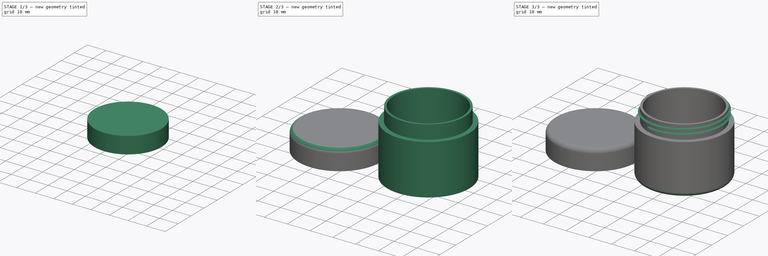
[diagram: build sequence overview — one tinted view per stage of 3, left to right]
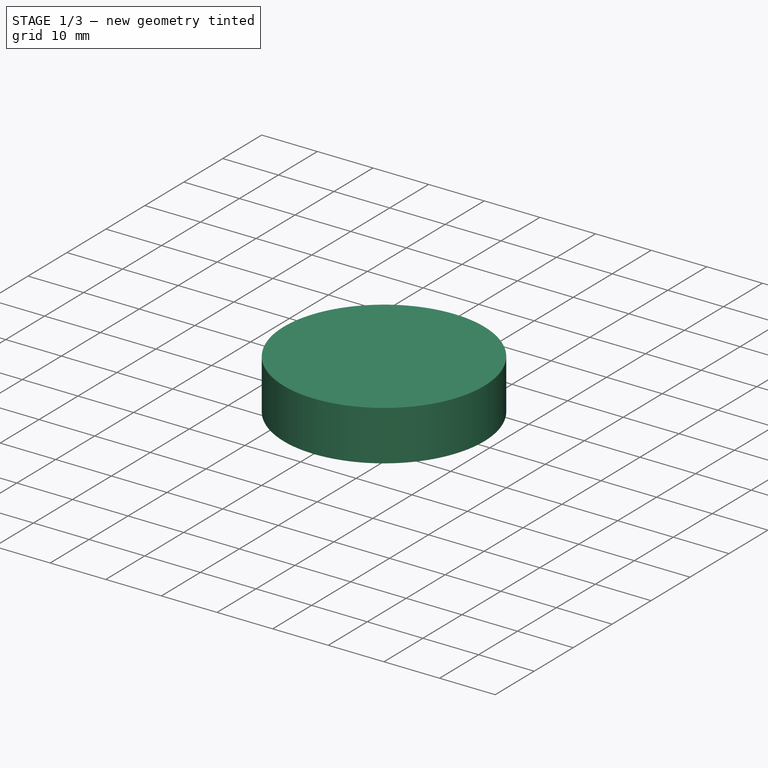
[diagram: stage 1 of 3 — iso view after this stage's code; geometry added in this stage tinted green]
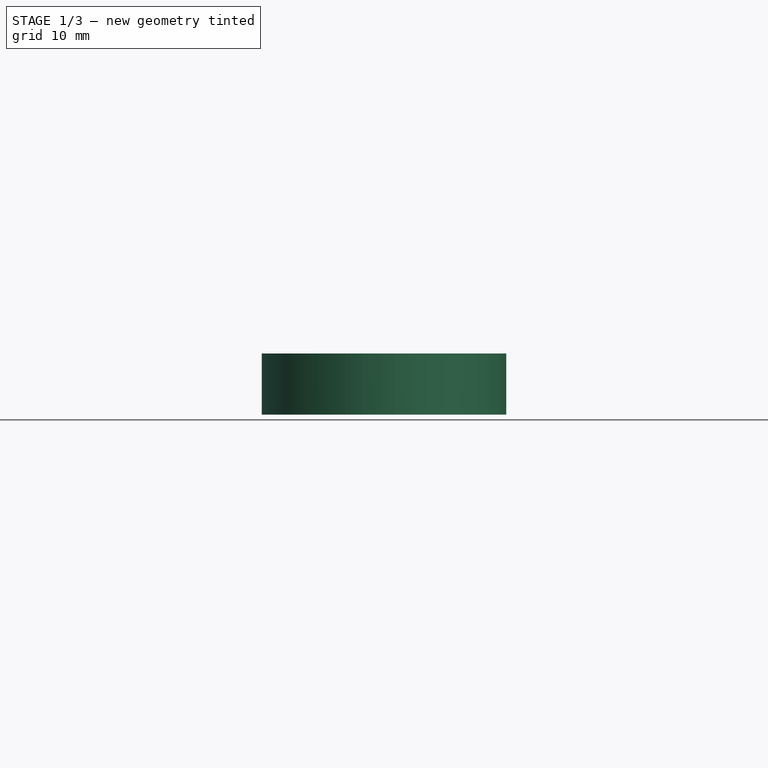
[diagram: stage 1 of 3 — front view after this stage's code; geometry added in this stage tinted green]
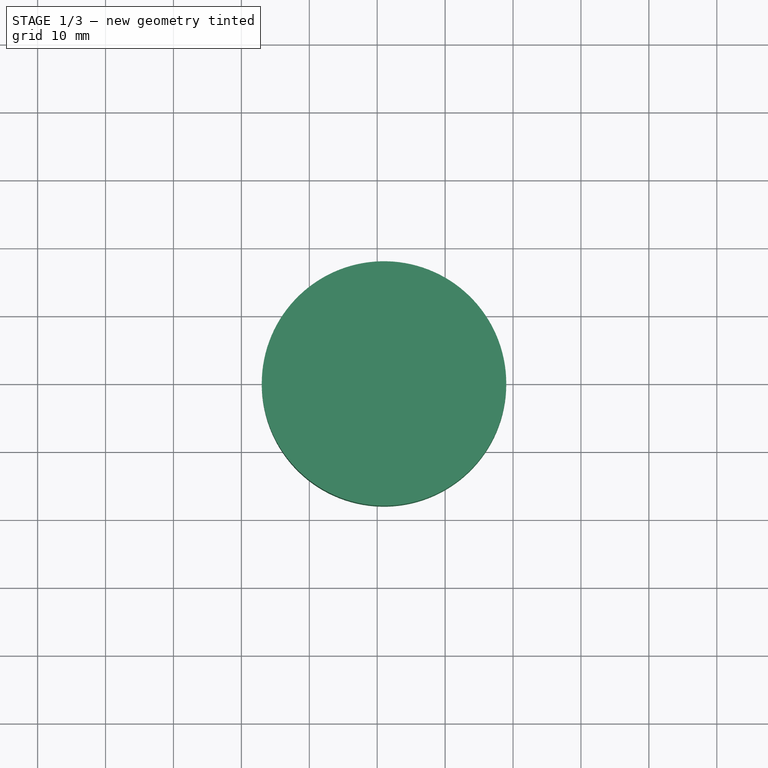
[diagram: stage 1 of 3 — top view after this stage's code; geometry added in this stage tinted green]
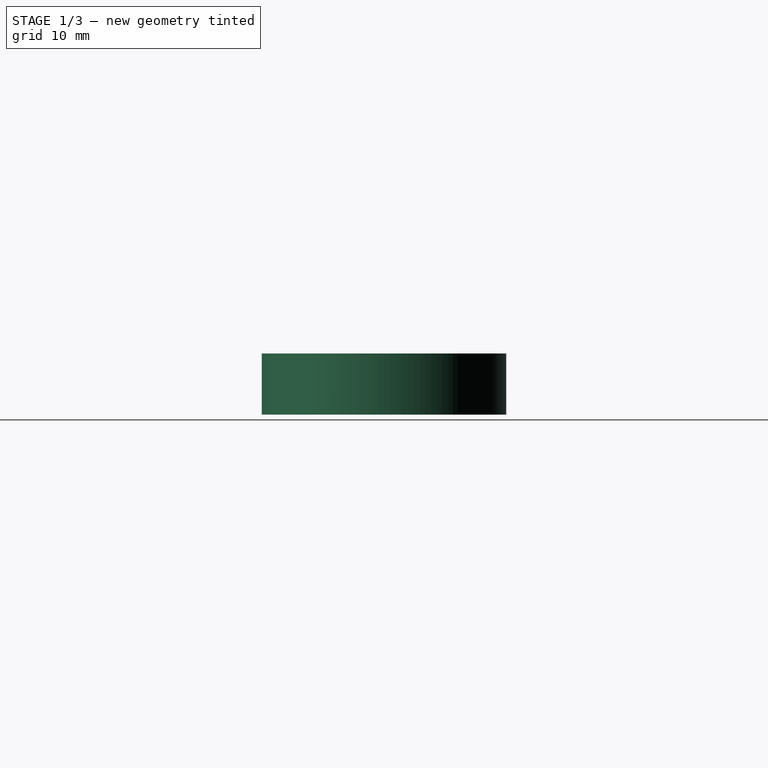
[diagram: stage 1 of 3 — right view after this stage's code; geometry added in this stage tinted green]
FCSTD DOCUMENT  (FreeCAD 1.0R39319 (Git))
Label: SmallBox
License: All rights reserved
LicenseURL: https://en.wikipedia.org/wiki/All_rights_reserved
objects: Sketcher::SketchObject×4, PartDesign::Revolution×2, PartDesign::AdditiveHelix×2, PartDesign::Fillet×2, PartDesign::Body×2, App::VarSet×1
note: 28 computed .brp shape members not serialized (recipe doc carries the construction recipe); baked Part::Feature solids carry a one-line shape summary decoded from their .brp

FEATURE [Sketcher::SketchObject] Sketch002  label="CapBody"
  ArcFitTolerance = 1e-06
  AttachmentSupport = -> [XZ_Plane001]
  FullyConstrained = true
  MakeInternals = false
  MapMode = 5
  Placement = pos=(0,0,0) rot=(1,0,0;1.5708rad)
  expr: Constraints[11] = VarSet.CapInternalHeight
  expr: Constraints[12] = VarSet.Thickness
  expr: Constraints[13] = VarSet.ContactThickness
  expr: Constraints[15] = VarSet.ExternalRadius
  expr: Constraints[16] = VarSet.ExternalRadius * 2 + VarSet.Thickness
  sketch-geometry (6):
    g0: LineSegment StartX=-39 StartY=6 StartZ=0 EndX=-56.05 EndY=6 EndZ=0
    g1: LineSegment StartX=-56.05 StartY=6 StartZ=0 EndX=-56.05 EndY=0 EndZ=0
    g2: LineSegment StartX=-56.05 StartY=0 StartZ=0 EndX=-57 EndY=0 EndZ=0
    g3: LineSegment StartX=-57 StartY=0 StartZ=0 EndX=-57 EndY=9 EndZ=0
    g4: LineSegment StartX=-57 StartY=9 StartZ=0 EndX=-39 EndY=9 EndZ=0
    g5: LineSegment StartX=-39 StartY=9 StartZ=0 EndX=-39 EndY=6 EndZ=0
  constraints (18):
    c: Horizontal(g0)
    c: Vertical(g1)
    c: Coincident(g1,g2)
    c: Horizontal(g2)
    c: Coincident(g2,g3)
    c: Vertical(g3)
    c: Coincident(g3,g4)
    c: Horizontal(g4)
    c: Coincident(g4,g5)
    c: Coincident(g5,g0)
    c: Vertical(g5)
    c: DistanceY(g1,g0) = 6
    c: DistanceY(g5,g5) = 3
    c: DistanceX(g2,g2) = 0.95
    c: Coincident(g1,g0)
    c: DistanceX(g4,g4) = 18
    c: Distance(g-2,g5) = 39
    c: PointOnObject(g2,g-1)
FEATURE [Sketcher::SketchObject] Sketch003  label="CapThread"
  ArcFitTolerance = 1e-06
  AttachmentSupport = -> [XZ_Plane001]
  ExternalGeometry = -> [Sketch002]
  FullyConstrained = true
  MakeInternals = false
  MapMode = 5
  Placement = pos=(0,0,0) rot=(1,0,0;1.5708rad)
  expr: Constraints[6] = VarSet.ThreadWidth
  expr: Constraints[7] = VarSet.ThreadDepth
  sketch-geometry (3):
    g0: LineSegment StartX=-56.05 StartY=6 StartZ=0 EndX=-55.25 EndY=5.6 EndZ=0
    g1: LineSegment StartX=-55.25 StartY=5.6 StartZ=0 EndX=-56.05 EndY=5.2 EndZ=0
    g2: LineSegment StartX=-56.05 StartY=5.2 StartZ=0 EndX=-56.05 EndY=6 EndZ=0
  constraints (8):
    c: Coincident(g0,g-3)
    c: Coincident(g0,g1)
    c: Coincident(g1,g2)
    c: Coincident(g2,g0)
    c: Vertical(g2)
    c: Equal(g0,g1)
    c: DistanceY(g1,g0) = 0.8
    c: DistanceX(g0,g0) = 0.8
FEATURE [PartDesign::Revolution] Revolution002
  Angle = 360
  Angle2 = 60
  Axis = (0,-2e-16,-1)
  Base = (-39,2e-15,9)
  Placement = pos=(0,0,0) rot=(1,0,0;1.5708rad)
  Profile = -> Sketch002
  ReferenceAxis = -> Sketch002 [Edge6]
  Refine = true
  Suppressed = false
  Type = 0
FEATURE [PartDesign::AdditiveHelix] AdditiveHelix
  Angle = 0
  Axis = (0,-2e-16,-1)
  Base = (-39,2e-15,9)
  BaseFeature = -> Revolution002
  Growth = 0
  HasBeenEdited = true
  Height = 3.6
  LeftHanded = false
  Mode = 0
  Outside = false
  Pitch = 2
  Placement = pos=(0,0,0) rot=(1,0,0;1.5708rad)
  Profile = -> Sketch003
  ReferenceAxis = -> Sketch002 [Edge6]
  Refine = true
  Suppressed = false
  Tolerance = 0.1
  Turns = 1.8
  expr: Height = VarSet.ThreadLength
  expr: Pitch = VarSet.ThreadPitch
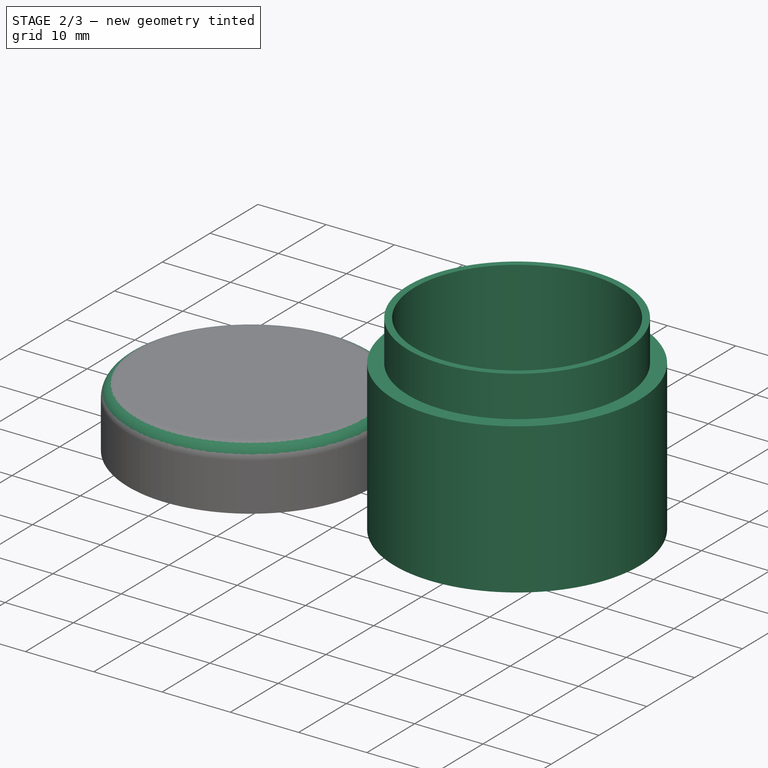
[diagram: stage 2 of 3 — iso view after this stage's code; geometry added in this stage tinted green]
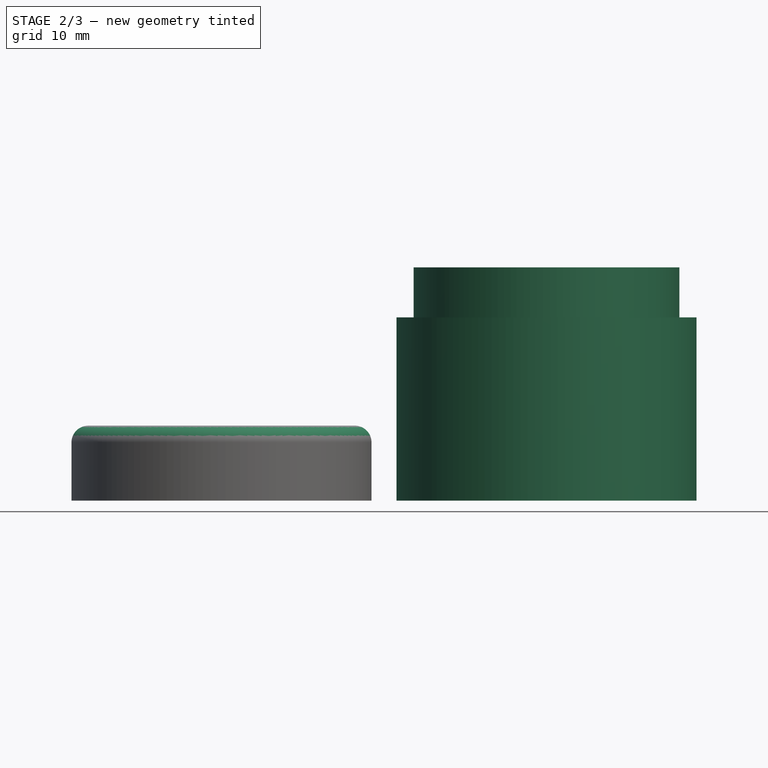
[diagram: stage 2 of 3 — front view after this stage's code; geometry added in this stage tinted green]
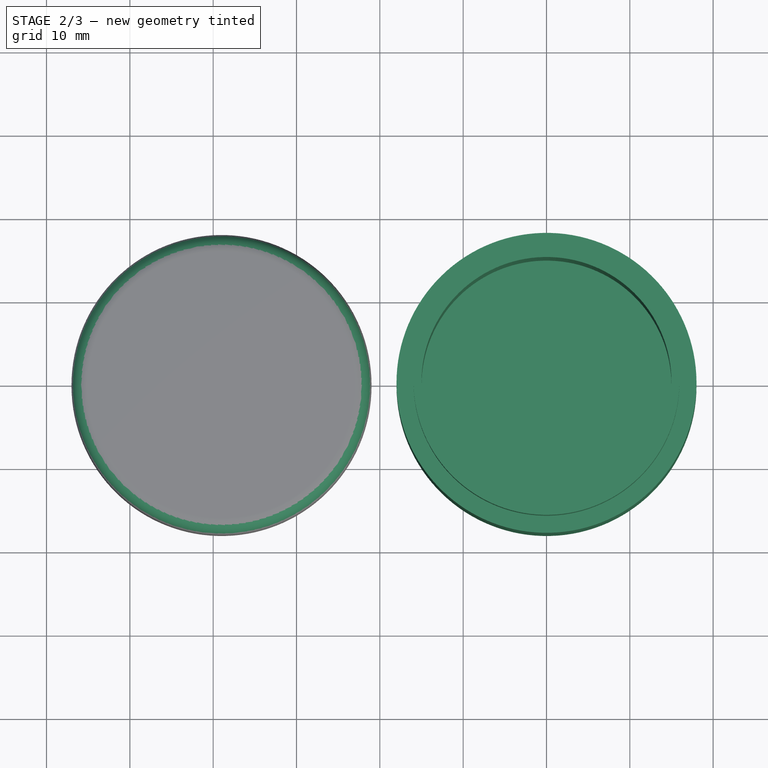
[diagram: stage 2 of 3 — top view after this stage's code; geometry added in this stage tinted green]
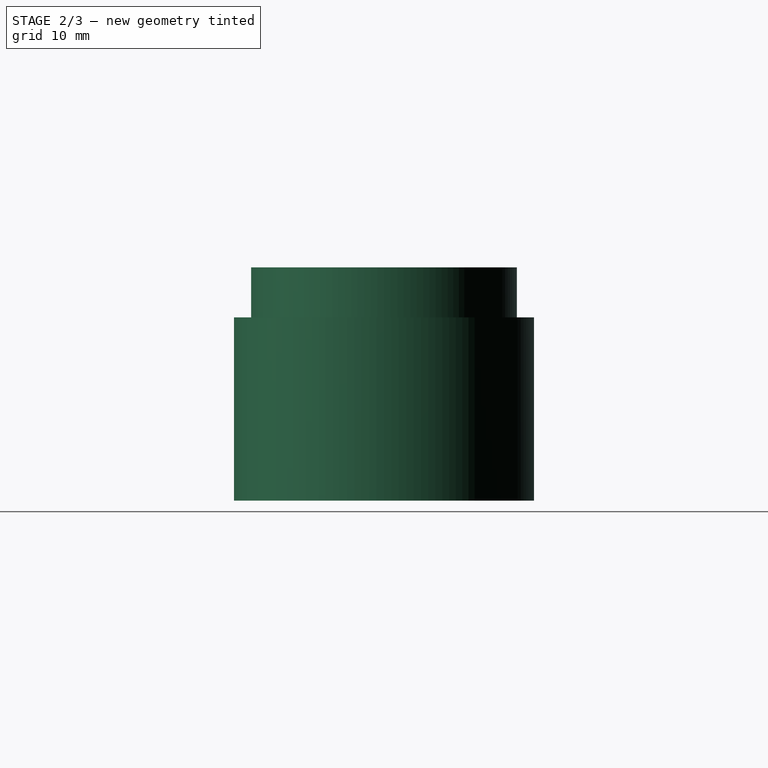
[diagram: stage 2 of 3 — right view after this stage's code; geometry added in this stage tinted green]
FEATURE [Sketcher::SketchObject] Sketch
  ArcFitTolerance = 1e-06
  AttachmentSupport = -> [XZ_Plane]
  FullyConstrained = true
  MakeInternals = false
  MapMode = 5
  Placement = pos=(0,0,0) rot=(1,0,0;1.5708rad)
  expr: Constraints[15] = VarSet.Thickness
  expr: Constraints[16] = VarSet.Thickness
  expr: Constraints[17] = VarSet.CapInternalHeight
  expr: Constraints[18] = VarSet.ContactThickness
  expr: Constraints[19] = VarSet.InternalRadius
  expr: Constraints[20] = VarSet.InternalHeight
  sketch-geometry (8):
    g0: LineSegment StartX=0 StartY=0 StartZ=0 EndX=-18 EndY=0 EndZ=0
    g1: LineSegment StartX=-18 StartY=0 StartZ=0 EndX=-18 EndY=22 EndZ=0
    g2: LineSegment StartX=-18 StartY=22 StartZ=0 EndX=-15.95 EndY=22 EndZ=0
    g3: LineSegment StartX=-15.95 StartY=22 StartZ=0 EndX=-15.95 EndY=28 EndZ=0
    g4: LineSegment StartX=-15.95 StartY=28 StartZ=0 EndX=-15 EndY=28 EndZ=0
    g5: LineSegment StartX=-15 StartY=28 StartZ=0 EndX=-15 EndY=3 EndZ=0
    g6: LineSegment StartX=-15 StartY=3 StartZ=0 EndX=0 EndY=3 EndZ=0
    g7: LineSegment StartX=0 StartY=3 StartZ=0 EndX=0 EndY=0 EndZ=0
  constraints (23):
    c: Coincident(g-1,g0)
    c: Coincident(g0,g1)
    c: Vertical(g1)
    c: Coincident(g1,g2)
    c: Horizontal(g2)
    c: Coincident(g2,g3)
    c: Vertical(g3)
    c: Coincident(g4,g5)
    c: Vertical(g5)
    c: Coincident(g5,g6)
    c: Horizontal(g6)
    c: Coincident(g6,g7)
    c: Coincident(g7,g0)
    c: Vertical(g7)
    c: Horizontal(g4)
    c: DistanceY(g7,g7) = 3
    c: Distance(g5,g1) = 3
    c: DistanceY(g2,g4) = 6
    c: DistanceX(g4,g4) = 0.95
    c: DistanceX(g6,g6) = 15
    c: DistanceY(g5,g5) = 25
    c: PointOnObject(g0,g-1)
    c: Coincident(g3,g4)
FEATURE [App::VarSet] VarSet
  CapInternalHeight = 6
  ContactThickness = 0.95
  ExternalRadius = 18
  InternalHeight = 25
  InternalRadius = 15
  Thickness = 3
  ThreadBuffer = 0.3
  ThreadDepth = 0.8
  ThreadLength = 3.6
  ThreadPitch = 2
  ThreadWidth = 0.8
  expr: ContactThickness = (Thickness - ThreadDepth - ThreadBuffer) / 2
  expr: ExternalRadius = InternalRadius + Thickness
  expr: ThreadLength = CapInternalHeight - ThreadWidth * 3
FEATURE [PartDesign::Revolution] Revolution  label="Box"
  Angle = 360
  Angle2 = 60
  Axis = (0,2e-16,1)
  Base = (0,0,0)
  Placement = pos=(0,0,0) rot=(1,0,0;1.5708rad)
  Profile = -> Sketch
  ReferenceAxis = -> Sketch [V_Axis]
  Refine = true
  Suppressed = false
  Type = 0
FEATURE [PartDesign::Body] Body  label="Bottom"
  AllowCompound = false
  Group = -> [Sketch,Revolution,Sketch004,AdditiveHelix001,Fillet001]
  Origin = -> Origin
  Tip = -> Fillet001
FEATURE [PartDesign::Fillet] Fillet
  Base = -> AdditiveHelix [Face12]
  BaseFeature = -> AdditiveHelix
  Placement = pos=(0,0,0) rot=(1,0,0;1.5708rad)
  Radius = 2
  Refine = true
  SupportTransform = false
  Suppressed = false
  UseAllEdges = false
FEATURE [PartDesign::Body] Body001  label="Cap"
  AllowCompound = false
  Group = -> [Sketch002,Sketch003,Revolution002,AdditiveHelix,Fillet]
  Origin = -> Origin001
  Tip = -> Fillet
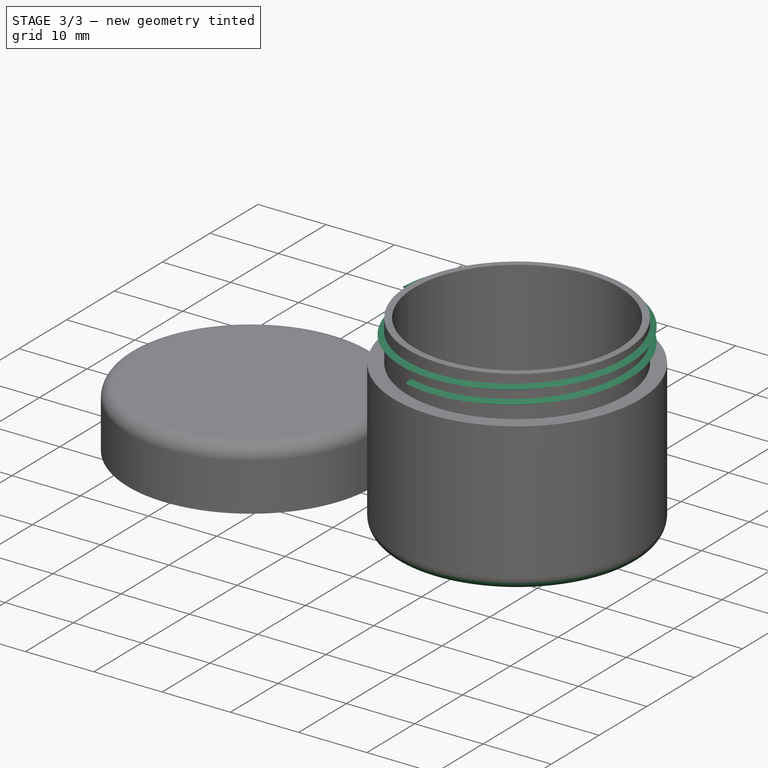
[diagram: stage 3 of 3 — iso view after this stage's code; geometry added in this stage tinted green]
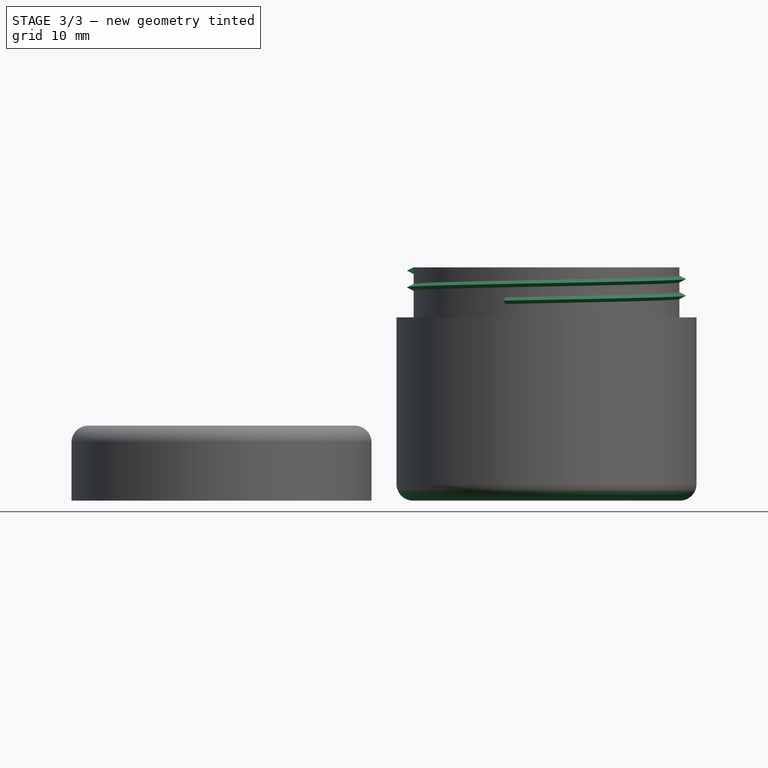
[diagram: stage 3 of 3 — front view after this stage's code; geometry added in this stage tinted green]
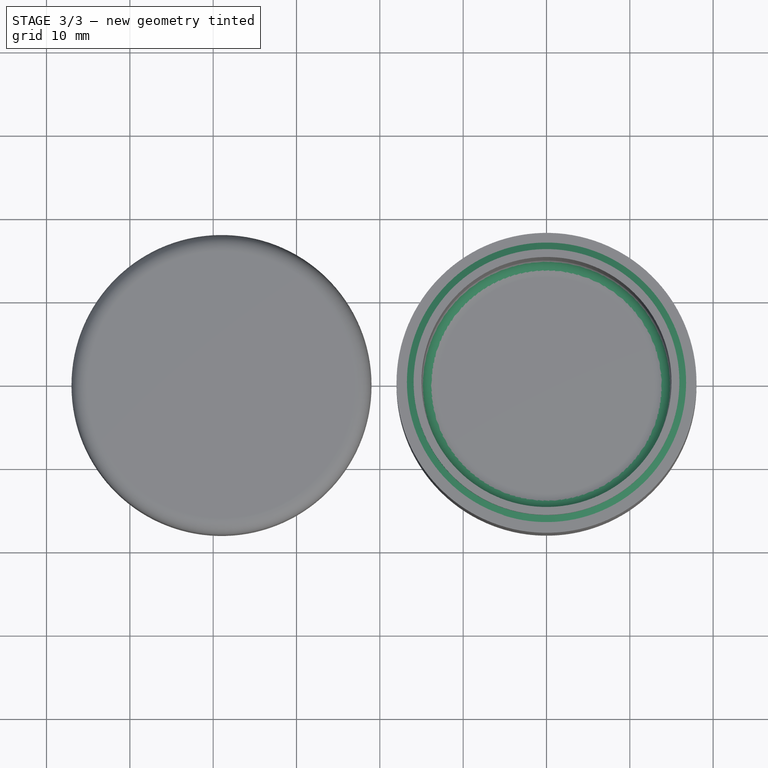
[diagram: stage 3 of 3 — top view after this stage's code; geometry added in this stage tinted green]
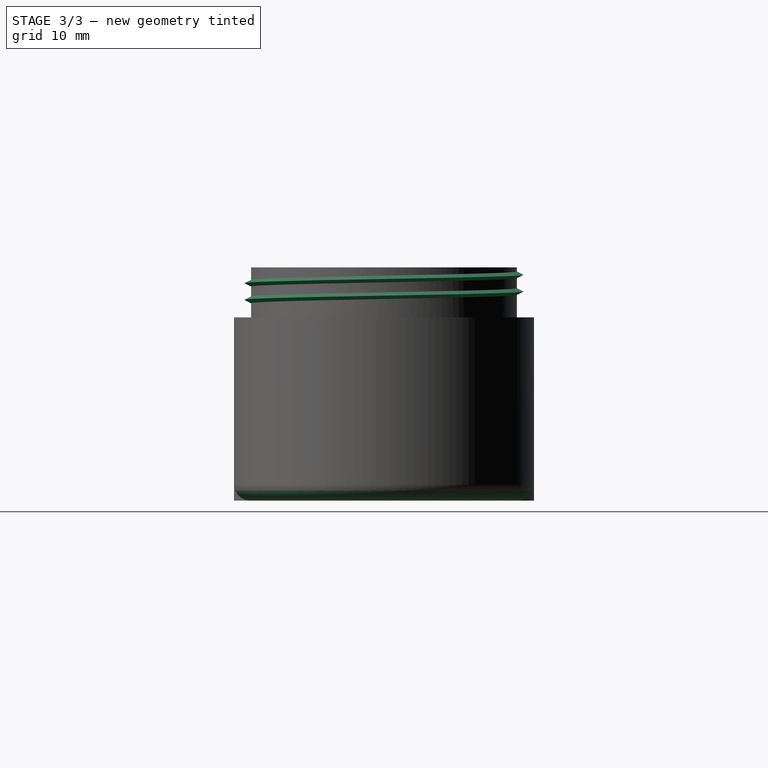
[diagram: stage 3 of 3 — right view after this stage's code; geometry added in this stage tinted green]
FEATURE [Sketcher::SketchObject] Sketch004  label="BodyThread"
  ArcFitTolerance = 1e-06
  AttachmentSupport = -> [XZ_Plane]
  ExternalGeometry = -> [Sketch]
  FullyConstrained = true
  MakeInternals = false
  MapMode = 5
  Placement = pos=(0,0,0) rot=(1,0,0;1.5708rad)
  expr: Constraints[5] = VarSet.ThreadWidth
  expr: Constraints[6] = VarSet.ThreadDepth
  sketch-geometry (3):
    g0: LineSegment StartX=-15.95 StartY=28 StartZ=0 EndX=-16.75 EndY=27.6 EndZ=0
    g1: LineSegment StartX=-16.75 StartY=27.6 StartZ=0 EndX=-15.95 EndY=27.2 EndZ=0
    g2: LineSegment StartX=-15.95 StartY=27.2 StartZ=0 EndX=-15.95 EndY=28 EndZ=0
  constraints (8):
    c: Coincident(g0,g-3)
    c: Coincident(g0,g1)
    c: Coincident(g1,g2)
    c: Coincident(g2,g0)
    c: Vertical(g2)
    c: DistanceY(g1,g0) = 0.8
    c: DistanceX(g0,g0) = 0.8
    c: Equal(g0,g1)
FEATURE [PartDesign::AdditiveHelix] AdditiveHelix001
  Angle = 0
  Axis = (0,2e-16,1)
  Base = (0,0,0)
  BaseFeature = -> Revolution
  Growth = 0
  HasBeenEdited = true
  Height = 3.6
  LeftHanded = false
  Mode = 0
  Outside = false
  Pitch = 2
  Placement = pos=(0,0,0) rot=(1,0,0;1.5708rad)
  Profile = -> Sketch004
  ReferenceAxis = -> Sketch004 [V_Axis]
  Refine = true
  Reversed = true
  Suppressed = false
  Tolerance = 0.1
  Turns = 1.8
  expr: Height = VarSet.ThreadLength
  expr: Pitch = VarSet.ThreadPitch
FEATURE [PartDesign::Fillet] Fillet001
  Base = -> AdditiveHelix001 [Face1,Face14]
  BaseFeature = -> AdditiveHelix001
  Placement = pos=(0,0,0) rot=(1,0,0;1.5708rad)
  Radius = 2
  Refine = true
  SupportTransform = false
  Suppressed = false
  UseAllEdges = false
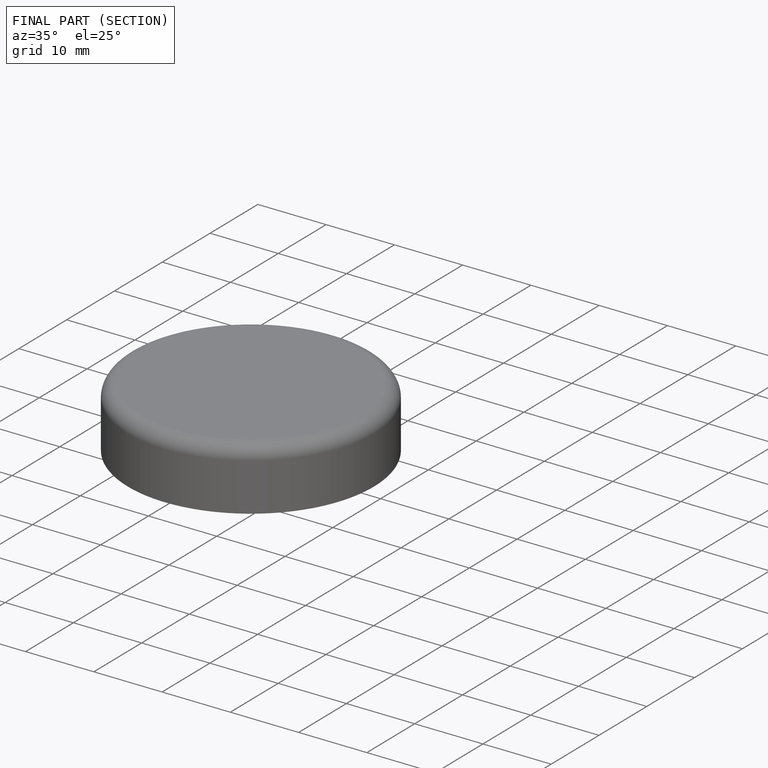
[diagram: finished part — half-section view (interior)]
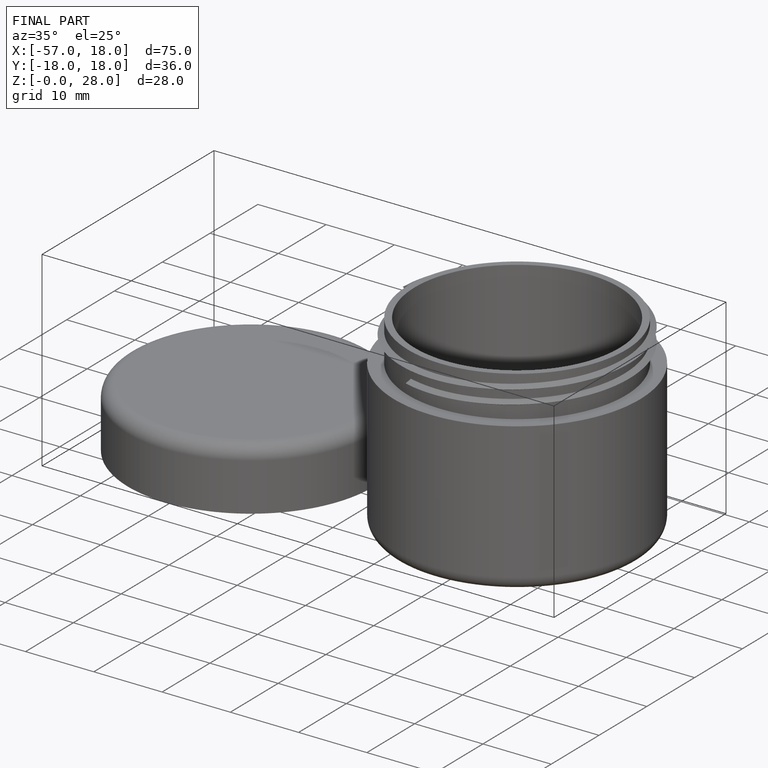
[diagram: finished part — iso view with bounding-box wireframe]
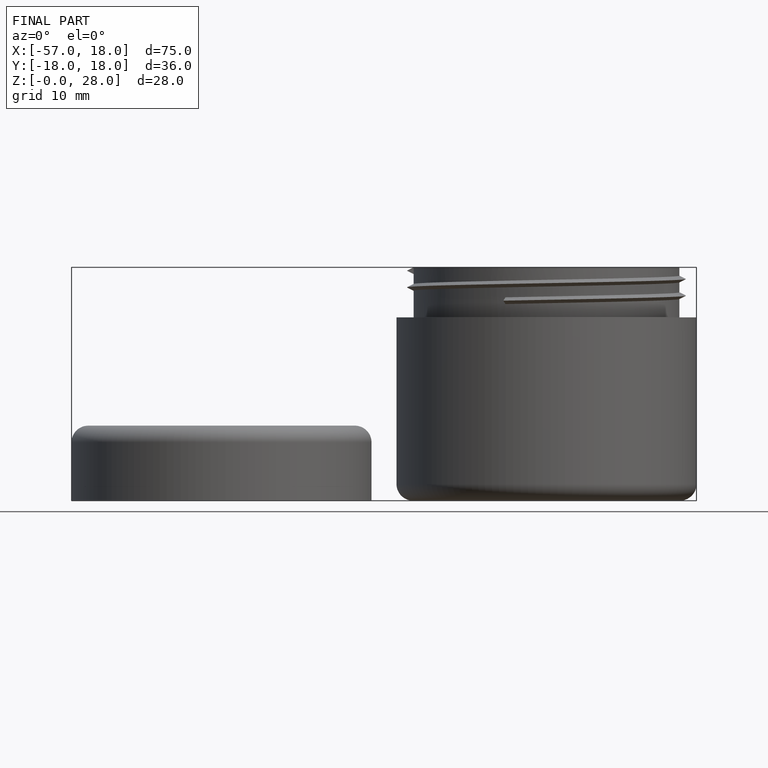
[diagram: finished part — front view with bounding-box wireframe]
